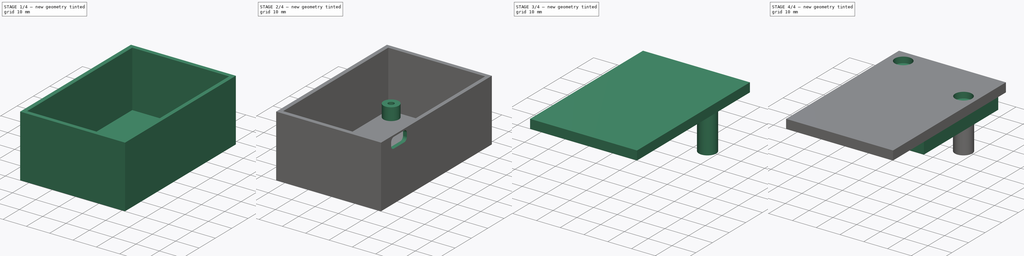
[diagram: build sequence overview — one tinted view per stage of 4, left to right]
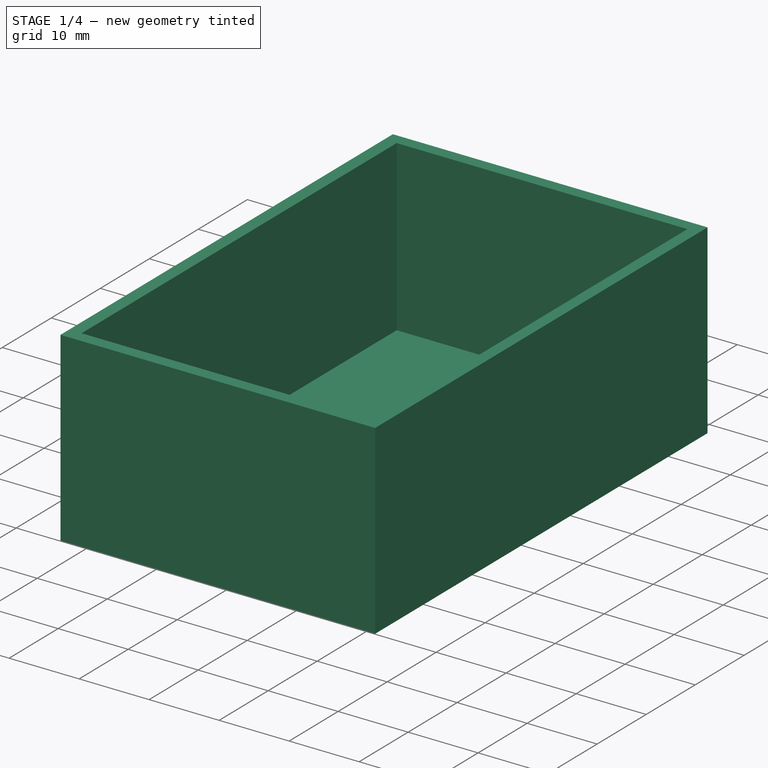
[diagram: stage 1 of 4 — iso view after this stage's code; geometry added in this stage tinted green]
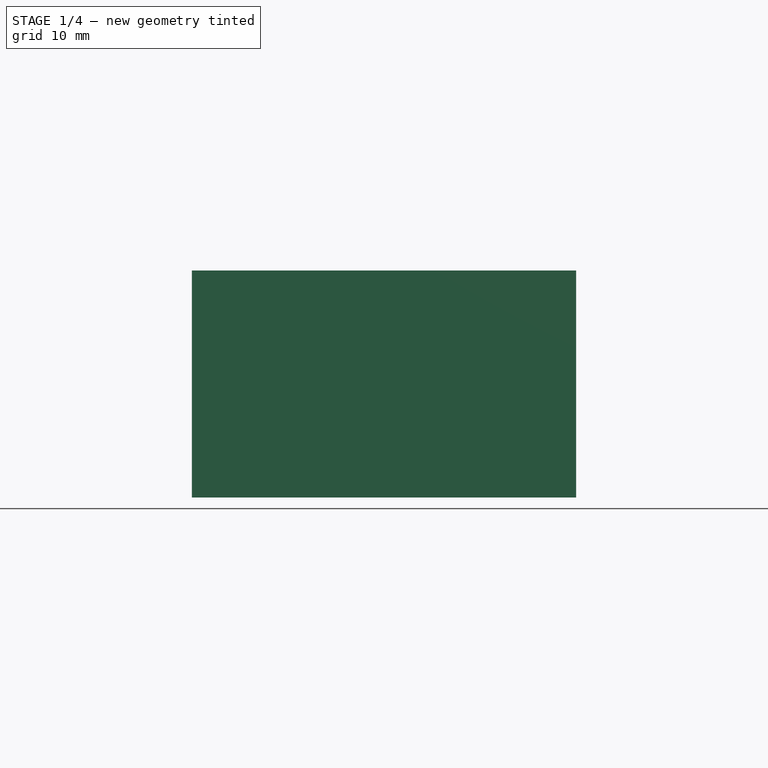
[diagram: stage 1 of 4 — front view after this stage's code; geometry added in this stage tinted green]
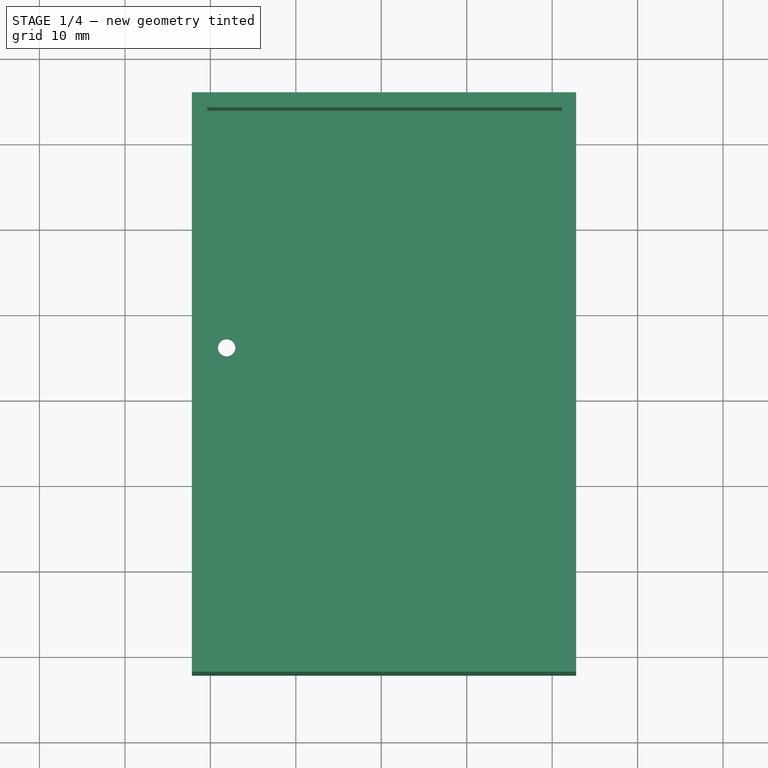
[diagram: stage 1 of 4 — top view after this stage's code; geometry added in this stage tinted green]
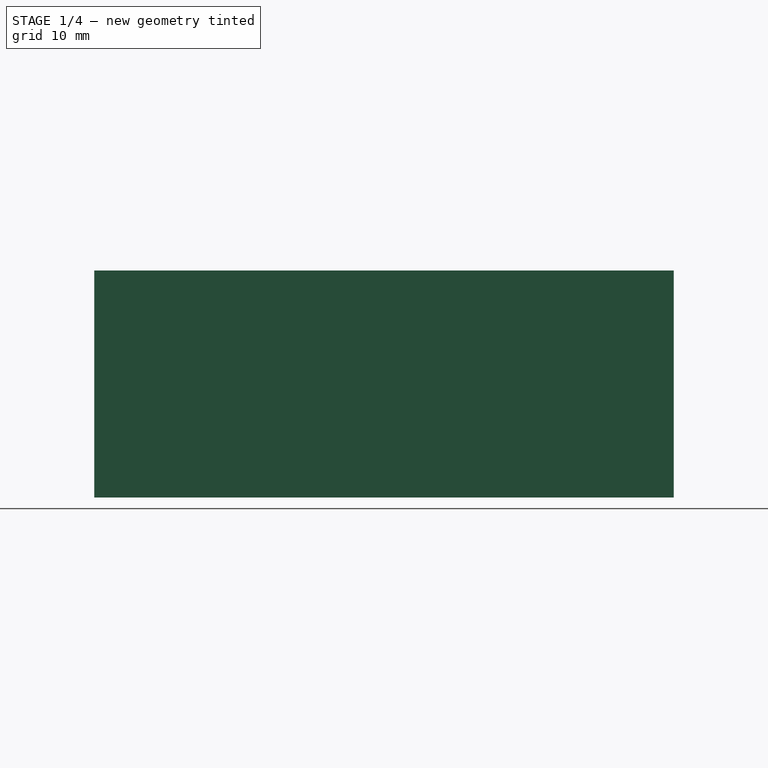
[diagram: stage 1 of 4 — right view after this stage's code; geometry added in this stage tinted green]
FCSTD DOCUMENT  (FreeCAD 1.0R39109 (Git))
Label: GatewayEnclosure
License: All rights reserved
LicenseURL: https://en.wikipedia.org/wiki/All_rights_reserved
objects: Sketcher::SketchObject×12, PartDesign::Pad×7, PartDesign::Pocket×5, PartDesign::Plane×4, PartDesign::SubShapeBinder×2, PartDesign::Body×2, App::Part×1
note: 68 computed .brp shape members not serialized (recipe doc carries the construction recipe); baked Part::Feature solids carry a one-line shape summary decoded from their .brp
EXTERNAL_REF file=../PCB/PCB.FCStd obj=Assembly

FEATURE [App::Part] Part
  Origin = -> Origin
FEATURE [PartDesign::SubShapeBinder] Binder
  BindCopyOnChange = 0
  BindMode = 0
  ClaimChildren = false
  Context = -> Body [Binder.]
  Fuse = false
  MakeFace = true
  OffsetFill = false
  OffsetIntersection = false
  OffsetJoinType = 0
  OffsetOpenResult = false
  PartialLoad = false
  Refine = true
  Relative = true
  Support = -> [<external ../PCB/PCB.FCStd>#Assembly]
  _Version = 2
FEATURE [PartDesign::Plane] DatumPlane  label="PCB bottom"
  AttachmentSupport = -> [Binder]
  Length = 83.6124
  MapMode = 5
  Placement = pos=(0,0,0) rot=(1,0,0;3.14159rad)
  ResizeMode = 0
  Width = 108.021
FEATURE [PartDesign::Plane] DatumPlane001  label="enclosure bottom inner face"
  AttachmentOffset = pos=(0,0,5.334) rot=(0,0,1;0rad)
  AttachmentSupport = -> [DatumPlane]
  Length = 83.6124
  MapMode = 2
  Placement = pos=(0,0,-5.334) rot=(1,0,0;3.14159rad)
  ResizeMode = 0
  Width = 108.021
FEATURE [Sketcher::SketchObject] Sketch
  ArcFitTolerance = 1e-06
  AttachmentSupport = -> [DatumPlane001]
  ExternalGeometry = -> [Binder]
  FullyConstrained = true
  MakeInternals = false
  MapMode = 5
  Placement = pos=(0,0,-5.334) rot=(1,0,0;3.14159rad)
  sketch-geometry (10):
    g0: LineSegment StartX=-2.159 StartY=2.159 StartZ=0 EndX=-2.159 EndY=-65.659 EndZ=0
    g1: LineSegment StartX=-2.159 StartY=-65.659 StartZ=0 EndX=42.799 EndY=-65.659 EndZ=0
    g2: LineSegment StartX=42.799 StartY=-65.659 StartZ=0 EndX=42.799 EndY=2.159 EndZ=0
    g3: LineSegment StartX=42.799 StartY=2.159 StartZ=0 EndX=-2.159 EndY=2.159 EndZ=0
    g4: GeomPoint X=20.32 Y=2.159 Z=0
    g5: GeomPoint X=20.32 Y=0 Z=0
    g6: GeomPoint X=42.799 Y=-31.75 Z=0
    g7: GeomPoint X=40.64 Y=-31.75 Z=0
    g8: LineSegment [constr] StartX=20.32 StartY=2.159 StartZ=0 EndX=20.32 EndY=0 EndZ=0
    g9: LineSegment [constr] StartX=40.64 StartY=-31.75 StartZ=0 EndX=42.799 EndY=-31.75 EndZ=0
  constraints (20):
    c: Coincident(g0,g1)
    c: Coincident(g1,g2)
    c: Coincident(g2,g3)
    c: Coincident(g3,g0)
    c: Vertical(g0)
    c: Vertical(g2)
    c: Horizontal(g1)
    c: Horizontal(g3)
    c: Symmetric(g-4,g-1,g5)
    c: Symmetric(g2,g0,g4)
    c: Symmetric(g-4,g-3,g7)
    c: Symmetric(g2,g1,g6)
    c: Horizontal(g7,g6)
    c: Vertical(g5,g4)
    c: Coincident(g8,g4)
    c: Coincident(g8,g5)
    c: Coincident(g9,g7)
    c: Coincident(g9,g6)
    c: Equal(g8,g9)
    c: DistanceY(g8,g8) = 2.159
FEATURE [PartDesign::Pad] Pad
  Direction = (0,0,-1)
  Length = 2.413
  Length2 = 10
  Placement = pos=(0,0,-5.334) rot=(1,0,0;3.14159rad)
  Profile = -> Sketch
  ReferenceAxis = -> Sketch [N_Axis]
  Refine = true
  Suppressed = false
  Type = 0
FEATURE [Sketcher::SketchObject] Sketch001
  ArcFitTolerance = 1e-06
  AttachmentSupport = -> [DatumPlane001]
  ExternalGeometry = -> [Pad,Binder]
  FullyConstrained = true
  MakeInternals = false
  MapMode = 5
  Placement = pos=(0,0,-5.334) rot=(1,0,0;3.14159rad)
  sketch-geometry (8):
    g0: LineSegment StartX=-2.159 StartY=-65.659 StartZ=0 EndX=42.799 EndY=-65.659 EndZ=0
    g1: LineSegment StartX=42.799 StartY=-65.659 StartZ=0 EndX=42.799 EndY=2.159 EndZ=0
    g2: LineSegment StartX=42.799 StartY=2.159 StartZ=0 EndX=-2.159 EndY=2.159 EndZ=0
    g3: LineSegment StartX=-2.159 StartY=2.159 StartZ=0 EndX=-2.159 EndY=-65.659 EndZ=0
    g4: LineSegment StartX=41.148 StartY=0.381 StartZ=0 EndX=-0.381 EndY=0.381 EndZ=0
    g5: LineSegment StartX=-0.381 StartY=0.381 StartZ=0 EndX=-0.381 EndY=-63.9064 EndZ=0
    g6: LineSegment StartX=-0.381 StartY=-63.9064 StartZ=0 EndX=41.148 EndY=-63.9064 EndZ=0
    g7: LineSegment StartX=41.148 StartY=-63.9064 StartZ=0 EndX=41.148 EndY=0.381 EndZ=0
  constraints (22):
    c: Coincident(g0,g1)
    c: Coincident(g1,g2)
    c: Coincident(g2,g3)
    c: Coincident(g3,g0)
    c: Horizontal(g0)
    c: Horizontal(g2)
    c: Vertical(g1)
    c: Vertical(g3)
    c: Coincident(g0,g-4)
    c: Coincident(g1,g-3)
    c: Coincident(g4,g5)
    c: Coincident(g5,g6)
    c: Coincident(g6,g7)
    c: Coincident(g7,g4)
    c: Horizontal(g4)
    c: Horizontal(g6)
    c: Vertical(g5)
    c: Vertical(g7)
    c: DistanceX(g-6,g4) = 0.508
    c: DistanceX(g4,g-1) = 0.381
    c: DistanceY(g-1,g4) = 0.381
    c: DistanceY(g5,g-5) = 0.4064
FEATURE [PartDesign::Plane] DatumPlane002  label="teensy button top"
  AttachmentSupport = -> [Binder]
  Length = 83.6124
  MapMode = 1
  Placement = pos=(11.0251,7.94038,17.051) rot=(0,0,1;0rad)
  ResizeMode = 0
  Width = 108.021
FEATURE [PartDesign::Pad] Pad001
  BaseFeature = -> Pad
  Direction = (0,0,-1)
  Length = 10
  Length2 = 10
  Offset = 1.778
  Placement = pos=(0,0,-5.334) rot=(1,0,0;3.14159rad)
  Profile = -> Sketch001
  ReferenceAxis = -> Sketch001 [N_Axis]
  Refine = true
  Suppressed = false
  Type = 3
  UpToFace = -> DatumPlane002 [Plane]
FEATURE [Sketcher::SketchObject] Sketch002
  ArcFitTolerance = 1e-06
  AttachmentSupport = -> [DatumPlane001]
  ExternalGeometry = -> [Binder]
  FullyConstrained = true
  MakeInternals = false
  MapMode = 5
  Placement = pos=(0,0,-5.334) rot=(1,0,0;3.14159rad)
  sketch-geometry (1):
    g0: Circle CenterX=1.905 CenterY=-36.195 CenterZ=0 NormalX=0 NormalY=0 NormalZ=1 AngleXU=0 Radius=1.016
  constraints (2):
    c: Coincident(g0,g-3)
    c: Diameter(g0) = 2.032
FEATURE [PartDesign::Pocket] Pocket
  BaseFeature = -> Pad001
  Direction = (0,0,1)
  Length = 5
  Length2 = 5
  Placement = pos=(0,0,-5.334) rot=(1,0,0;3.14159rad)
  Profile = -> Sketch002
  ReferenceAxis = -> Sketch002 [N_Axis]
  Refine = true
  Reversed = true
  Suppressed = false
  Type = 1
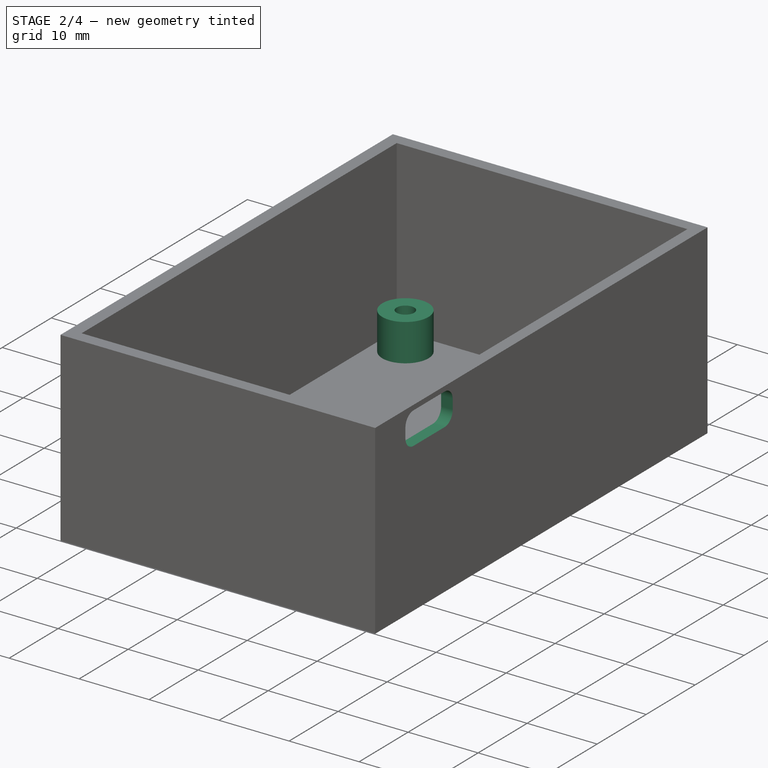
[diagram: stage 2 of 4 — iso view after this stage's code; geometry added in this stage tinted green]
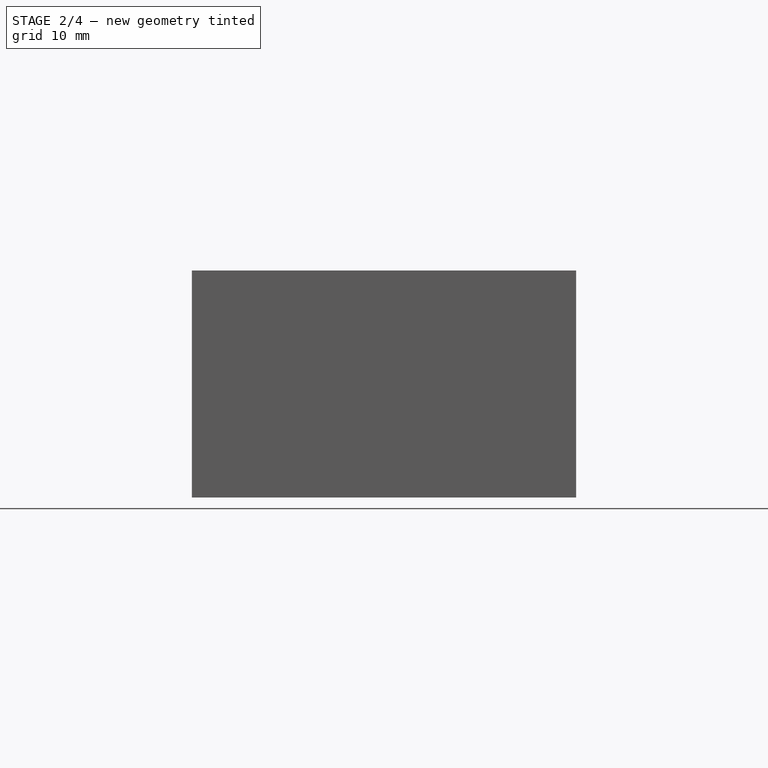
[diagram: stage 2 of 4 — front view after this stage's code; geometry added in this stage tinted green]
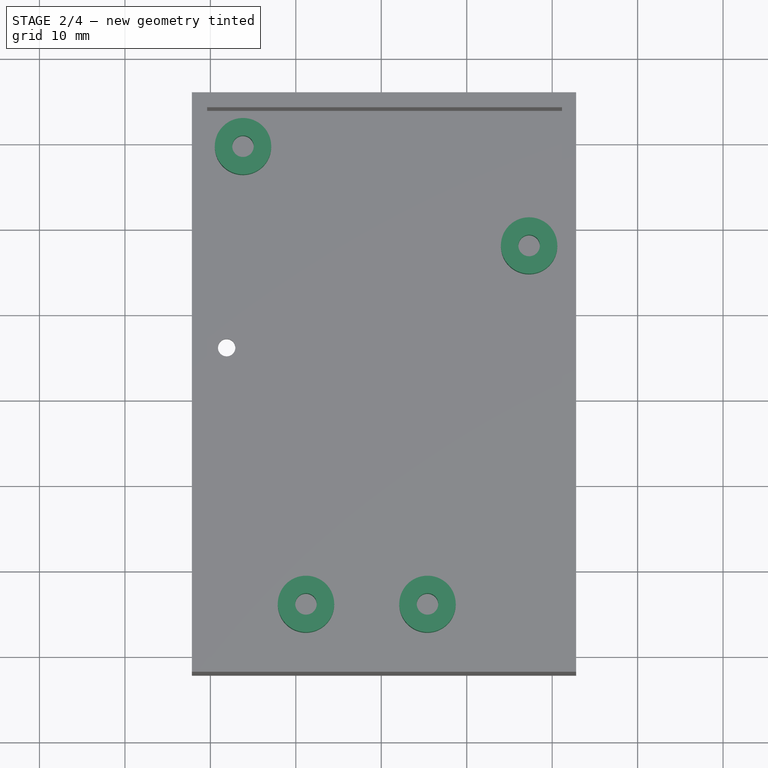
[diagram: stage 2 of 4 — top view after this stage's code; geometry added in this stage tinted green]
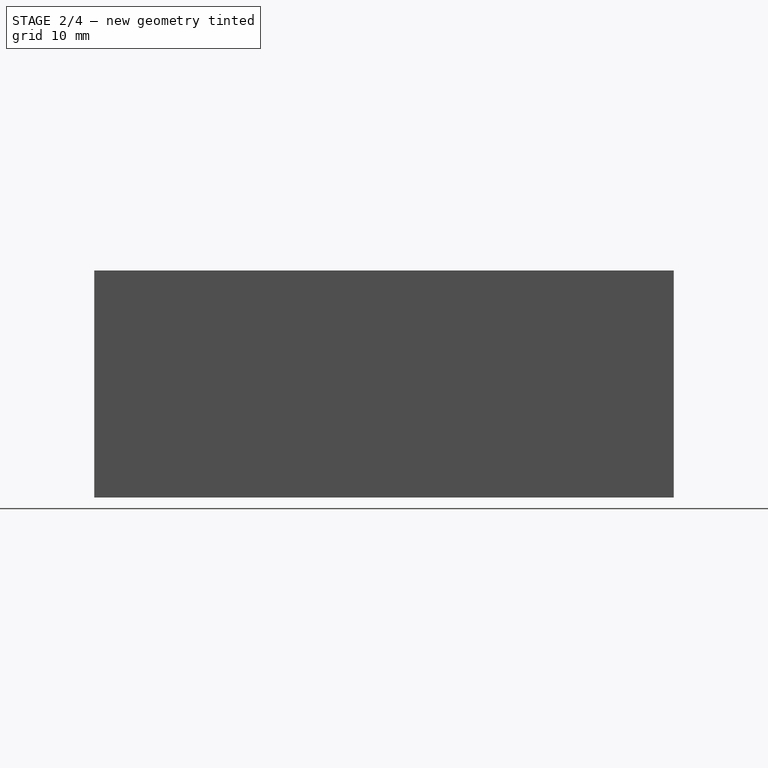
[diagram: stage 2 of 4 — right view after this stage's code; geometry added in this stage tinted green]
FEATURE [Sketcher::SketchObject] Sketch003
  ArcFitTolerance = 1e-06
  AttachmentSupport = -> [DatumPlane001]
  ExternalGeometry = -> [Binder]
  FullyConstrained = true
  MakeInternals = false
  MapMode = 5
  Placement = pos=(0,0,-5.334) rot=(1,0,0;3.14159rad)
  sketch-geometry (8):
    g0: Circle CenterX=3.81962 CenterY=-59.6804 CenterZ=0 NormalX=0 NormalY=0 NormalZ=1 AngleXU=0 Radius=3.302
    g1: Circle CenterX=37.3014 CenterY=-48.058 CenterZ=0 NormalX=0 NormalY=0 NormalZ=1 AngleXU=0 Radius=3.302
    g2: Circle CenterX=25.4096 CenterY=-6.10947 CenterZ=0 NormalX=0 NormalY=0 NormalZ=1 AngleXU=0 Radius=3.302
    g3: Circle CenterX=11.1895 CenterY=-6.10947 CenterZ=0 NormalX=0 NormalY=0 NormalZ=1 AngleXU=0 Radius=3.302
    g4: Circle CenterX=3.81962 CenterY=-59.6804 CenterZ=0 NormalX=0 NormalY=0 NormalZ=1 AngleXU=0 Radius=1.2573
    g5: Circle CenterX=37.3014 CenterY=-48.058 CenterZ=0 NormalX=0 NormalY=0 NormalZ=1 AngleXU=0 Radius=1.2573
    g6: Circle CenterX=25.4096 CenterY=-6.10947 CenterZ=0 NormalX=0 NormalY=0 NormalZ=1 AngleXU=0 Radius=1.2573
    g7: Circle CenterX=11.1895 CenterY=-6.10947 CenterZ=0 NormalX=0 NormalY=0 NormalZ=1 AngleXU=0 Radius=1.2573
  constraints (16):
    c: Coincident(g0,g-3)
    c: Coincident(g1,g-4)
    c: Coincident(g2,g-5)
    c: Coincident(g3,g-6)
    c: Equal(g3,g2)
    c: Equal(g3,g1)
    c: Equal(g1,g0)
    c: Diameter(g0) = 6.604
    c: Coincident(g4,g0)
    c: Coincident(g5,g1)
    c: Coincident(g6,g2)
    c: Coincident(g7,g3)
    c: Diameter(g7) = 2.5146
    c: Equal(g7,g6)
    c: Equal(g7,g5)
    c: Equal(g4,g7)
FEATURE [PartDesign::Pad] Pad002
  BaseFeature = -> Pocket
  Direction = (0,0,-1)
  Length = 10
  Length2 = 10
  Placement = pos=(0,0,-5.334) rot=(1,0,0;3.14159rad)
  Profile = -> Sketch003
  ReferenceAxis = -> Sketch003 [N_Axis]
  Refine = true
  Suppressed = false
  Type = 3
  UpToFace = -> DatumPlane [Plane]
FEATURE [Sketcher::SketchObject] Sketch004
  ArcFitTolerance = 1e-06
  AttachmentSupport = -> [Pad002]
  ExternalGeometry = -> [Binder]
  FullyConstrained = true
  MakeInternals = false
  MapMode = 5
  Placement = pos=(42.799,0,-5.334) rot=(0.57735,-0.57735,0.57735;4.18879rad)
  sketch-geometry (5):
    g0: ArcOfCircle CenterX=-12.0404 CenterY=-20.485 CenterZ=0 NormalX=0 NormalY=0 NormalZ=1 AngleXU=0 Radius=1.622 StartAngle=5.85397 EndAngle=9.85399
    g1: ArcOfCircle CenterX=-12.0404 CenterY=-21.835 CenterZ=0 NormalX=0 NormalY=0 NormalZ=1 AngleXU=0 Radius=1.622 StartAngle=2.71238 EndAngle=6.7124
    g2: ArcOfCircle CenterX=-5.64038 CenterY=-21.835 CenterZ=0 NormalX=0 NormalY=0 NormalZ=1 AngleXU=0 Radius=1.622 StartAngle=2.71238 EndAngle=6.7124
    g3: LineSegment [constr] StartX=-5.64038 StartY=-21.835 StartZ=0 EndX=-5.64038 EndY=-23.457 EndZ=0
    g4: ArcOfCircle CenterX=-5.64038 CenterY=-20.485 CenterZ=0 NormalX=0 NormalY=0 NormalZ=1 AngleXU=0 Radius=1.622 StartAngle=5.85397 EndAngle=9.85399
  constraints (16):
    c: Coincident(g0,g-6)
    c: Coincident(g1,g-3)
    c: Coincident(g2,g-4)
    c: Coincident(g3,g2)
    c: PointOnObject(g3,g2)
    c: Vertical(g3)
    c: DistanceY(g3,g-7) = 0.762
    c: Equal(g2,g1)
    c: Equal(g2,g0)
    c: PointOnObject(g2,g4)
    c: Coincident(g4,g2)
    c: PointOnObject(g4,g2)
    c: Coincident(g1,g0)
    c: Coincident(g1,g0)
    c: Equal(g4,g2)
    c: Coincident(g-5,g4)
FEATURE [PartDesign::Pocket] Pocket001
  BaseFeature = -> Pad002
  Direction = (-1,0,0)
  Length = 5
  Length2 = 5
  Placement = pos=(0,0,-5.334) rot=(1,0,0;3.14159rad)
  Profile = -> Sketch004
  ReferenceAxis = -> Sketch004 [N_Axis]
  Refine = true
  Suppressed = false
  Type = 2
FEATURE [Sketcher::SketchObject] Sketch005
  ArcFitTolerance = 1e-06
  AttachmentSupport = -> [Pocket001]
  ExternalGeometry = -> [Pocket001]
  FullyConstrained = false
  MakeInternals = false
  MapMode = 5
  Placement = pos=(42.799,0,-5.334) rot=(0.57735,-0.57735,0.57735;4.18879rad)
  sketch-geometry (12):
    g0: LineSegment StartX=-12.0404 StartY=-23.457 StartZ=0 EndX=-5.64038 EndY=-23.457 EndZ=0
    g1: LineSegment StartX=-5.64038 StartY=-23.457 StartZ=0 EndX=-5.64038 EndY=-21.835 EndZ=0
    g2: LineSegment StartX=-5.64038 StartY=-18.863 StartZ=0 EndX=-12.0404 EndY=-18.863 EndZ=0
    g3: LineSegment StartX=-13.6624 StartY=-20.485 StartZ=0 EndX=-13.6624 EndY=-21.835 EndZ=0
    g4: LineSegment StartX=-13.6624 StartY=-21.835 StartZ=0 EndX=-12.0404 EndY=-21.835 EndZ=0
    g5: LineSegment StartX=-4.01838 StartY=-21.835 StartZ=0 EndX=-4.01838 EndY=-20.485 EndZ=0
    g6: LineSegment StartX=-4.01838 StartY=-20.485 StartZ=0 EndX=-5.64038 EndY=-20.485 EndZ=0
    g7: LineSegment StartX=-12.0404 StartY=-20.485 StartZ=0 EndX=-13.6624 EndY=-20.485 EndZ=0
    g8: LineSegment StartX=-5.64038 StartY=-21.835 StartZ=0 EndX=-4.01838 EndY=-21.835 EndZ=0
    g9: LineSegment StartX=-12.0404 StartY=-21.835 StartZ=0 EndX=-12.0404 EndY=-23.457 EndZ=0
    g10: LineSegment StartX=-5.64038 StartY=-20.485 StartZ=0 EndX=-5.64038 EndY=-18.863 EndZ=0
    g11: LineSegment StartX=-12.0404 StartY=-20.485 StartZ=0 EndX=-12.0404 EndY=-18.863 EndZ=0
  constraints (31):
    c: Coincident(g9,g0)
    c: Coincident(g0,g1)
    c: Coincident(g10,g2)
    c: Vertical(g1)
    c: PointOnObject(g2,g-3)
    c: Tangent(g2,g-6)
    c: Tangent(g0,g-5) = -1.5708
    c: Coincident(g3,g4)
    c: Coincident(g8,g5)
    c: Coincident(g5,g6)
    c: Coincident(g7,g3)
    c: Vertical(g3)
    c: Vertical(g5)
    c: Horizontal(g4)
    c: Horizontal(g6)
    c: Tangent(g-3,g3)
    c: Tangent(g5,g-6)
    c: PointOnObject(g6,g10)
    c: Coincident(g4,g9)
    c: Coincident(g1,g8)
    c: PointOnObject(g10,g6)
    c: Coincident(g4,g-4)
    c: Coincident(g11,g7)
    c: Coincident(g11,g2)
    c: Vertical(g11)
    c: Vertical(g9)
    c: Coincident(g-3,g7)
    c: Horizontal(g7)
    c: Horizontal(g8)
    c: Coincident(g1,g-5)
    c: Coincident(g6,g-6)
FEATURE [PartDesign::Pocket] Pocket002
  BaseFeature = -> Pocket001
  Direction = (-1,0,0)
  Length = 5
  Length2 = 5
  Placement = pos=(0,0,-5.334) rot=(1,0,0;3.14159rad)
  Profile = -> Sketch005
  ReferenceAxis = -> Sketch005 [N_Axis]
  Refine = true
  Suppressed = false
  Type = 2
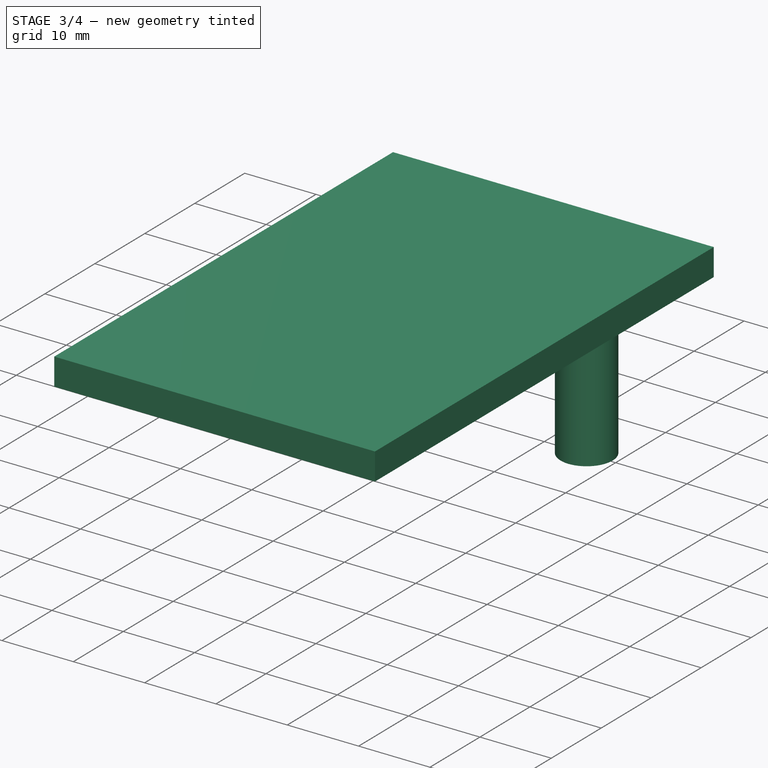
[diagram: stage 3 of 4 — iso view after this stage's code; geometry added in this stage tinted green]
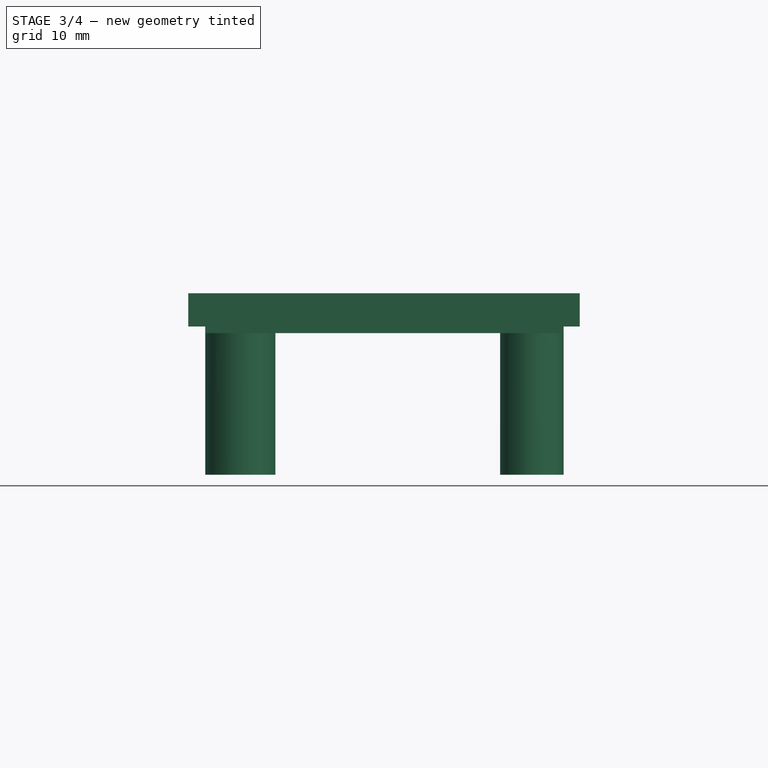
[diagram: stage 3 of 4 — front view after this stage's code; geometry added in this stage tinted green]
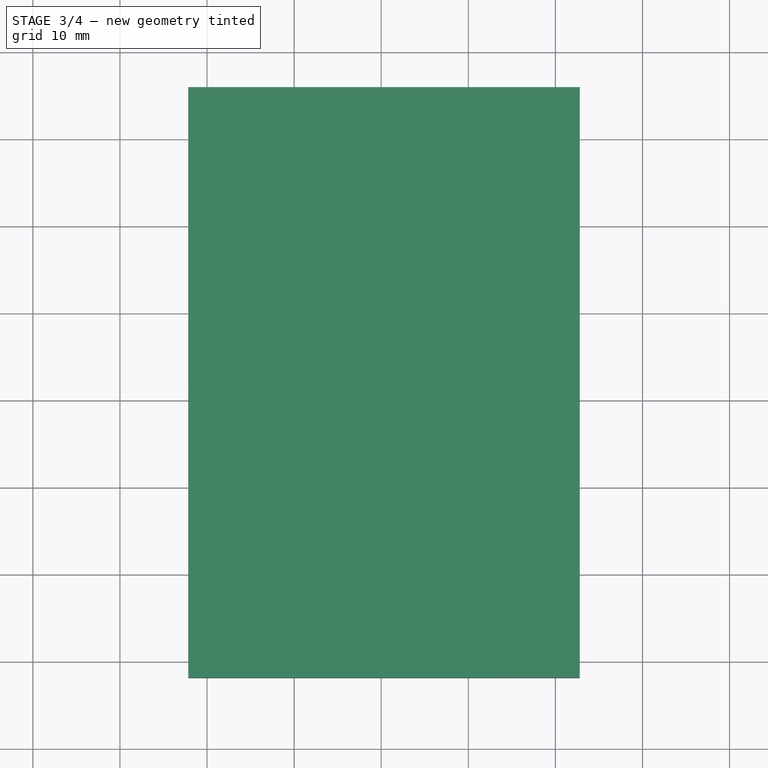
[diagram: stage 3 of 4 — top view after this stage's code; geometry added in this stage tinted green]
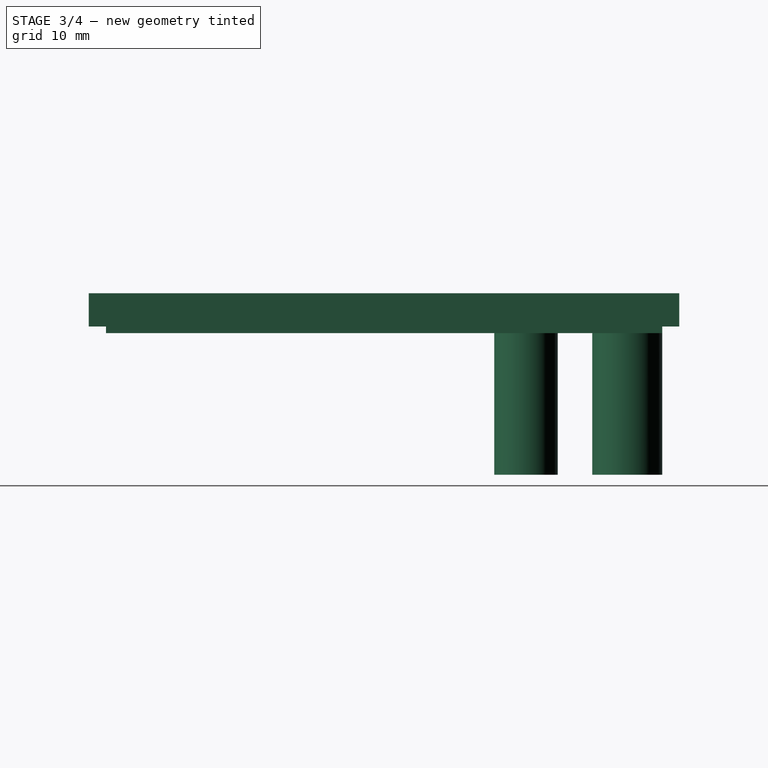
[diagram: stage 3 of 4 — right view after this stage's code; geometry added in this stage tinted green]
FEATURE [PartDesign::Body] Body  label="main body"
  AllowCompound = false
  Group = -> [Binder,DatumPlane,DatumPlane001,Sketch,Pad,Sketch001,DatumPlane002,Pad001,Sketch002,Pocket,Sketch003,Pad002,Sketch004,Pocket001,Sketch005,Pocket002]
  Origin = -> Origin001
  Tip = -> Pocket002
FEATURE [PartDesign::SubShapeBinder] Binder001
  BindCopyOnChange = 0
  BindMode = 0
  ClaimChildren = false
  Context = -> Body001 [Binder001.]
  Fuse = false
  MakeFace = true
  OffsetFill = false
  OffsetIntersection = false
  OffsetJoinType = 0
  OffsetOpenResult = false
  PartialLoad = false
  Refine = true
  Relative = true
  Support = -> [Body]
  _Version = 2
FEATURE [PartDesign::Plane] DatumPlane003  label="mating plane"
  AttachmentSupport = -> [Binder001]
  Length = 83.479
  MapMode = 5
  Placement = pos=(0,-2.3e-15,18.829) rot=(0,0,1;0rad)
  ResizeMode = 0
  Width = 106.339
FEATURE [Sketcher::SketchObject] Sketch006
  ArcFitTolerance = 1e-06
  AttachmentSupport = -> [DatumPlane003]
  ExternalGeometry = -> [Binder001]
  FullyConstrained = true
  MakeInternals = false
  MapMode = 5
  Placement = pos=(0,-2.3e-15,18.829) rot=(0,0,1;0rad)
  sketch-geometry (4):
    g0: LineSegment StartX=42.799 StartY=65.659 StartZ=0 EndX=-2.159 EndY=65.659 EndZ=0
    g1: LineSegment StartX=-2.159 StartY=65.659 StartZ=0 EndX=-2.159 EndY=-2.159 EndZ=0
    g2: LineSegment StartX=-2.159 StartY=-2.159 StartZ=0 EndX=42.799 EndY=-2.159 EndZ=0
    g3: LineSegment StartX=42.799 StartY=-2.159 StartZ=0 EndX=42.799 EndY=65.659 EndZ=0
  constraints (10):
    c: Coincident(g0,g1)
    c: Coincident(g1,g2)
    c: Coincident(g2,g3)
    c: Coincident(g3,g0)
    c: Horizontal(g0)
    c: Horizontal(g2)
    c: Vertical(g1)
    c: Vertical(g3)
    c: Coincident(g0,g-3)
    c: Coincident(g1,g-4)
FEATURE [PartDesign::Pad] Pad003
  Direction = (0,0,1)
  Length = 3.81
  Length2 = 10
  Placement = pos=(0,-2.3e-15,18.829) rot=(0,0,1;0rad)
  Profile = -> Sketch006
  ReferenceAxis = -> Sketch006 [N_Axis]
  Refine = true
  Suppressed = false
  Type = 0
FEATURE [Sketcher::SketchObject] Sketch007
  ArcFitTolerance = 1e-06
  AttachmentSupport = -> [DatumPlane003]
  ExternalGeometry = -> [Binder001]
  FullyConstrained = true
  MakeInternals = false
  MapMode = 5
  Placement = pos=(0,-2.3e-15,18.829) rot=(0,0,1;0rad)
  sketch-geometry (10):
    g0: LineSegment StartX=40.9448 StartY=-0.1778 StartZ=0 EndX=40.9448 EndY=63.7032 EndZ=0
    g1: LineSegment StartX=40.9448 StartY=63.7032 StartZ=0 EndX=-0.1778 EndY=63.7032 EndZ=0
    g2: LineSegment StartX=-0.1778 StartY=63.7032 StartZ=0 EndX=-0.1778 EndY=-0.1778 EndZ=0
    g3: LineSegment StartX=-0.1778 StartY=-0.1778 StartZ=0 EndX=40.9448 EndY=-0.1778 EndZ=0
    g4: GeomPoint X=20.3835 Y=63.7032 Z=0
    g5: GeomPoint X=20.3835 Y=63.9064 Z=0
    g6: GeomPoint X=40.9448 Y=31.7627 Z=0
    g7: GeomPoint X=41.148 Y=31.7627 Z=0
    g8: LineSegment [constr] StartX=40.9448 StartY=31.7627 StartZ=0 EndX=41.148 EndY=31.7627 EndZ=0
    g9: LineSegment [constr] StartX=20.3835 StartY=63.7032 StartZ=0 EndX=20.3835 EndY=63.9064 EndZ=0
  constraints (20):
    c: Coincident(g0,g1)
    c: Coincident(g1,g2)
    c: Coincident(g2,g3)
    c: Coincident(g3,g0)
    c: Vertical(g0)
    c: Vertical(g2)
    c: Horizontal(g1)
    c: Horizontal(g3)
    c: Symmetric(g0,g1,g4)
    c: Symmetric(g-3,g-3,g5)
    c: Vertical(g4,g5)
    c: Symmetric(g0,g0,g6)
    c: Symmetric(g-3,g-4,g7)
    c: Horizontal(g7,g6)
    c: Coincident(g8,g6)
    c: Coincident(g8,g7)
    c: Distance(g8,g8) = 0.2032
    c: Coincident(g9,g4)
    c: Coincident(g9,g5)
    c: Equal(g9,g8)
FEATURE [PartDesign::Pad] Pad004
  BaseFeature = -> Pad003
  Direction = (0,0,1)
  Length = 0.762
  Length2 = 10
  Placement = pos=(0,-2.3e-15,18.829) rot=(0,0,1;0rad)
  Profile = -> Sketch007
  ReferenceAxis = -> Sketch007 [N_Axis]
  Refine = true
  Reversed = true
  Suppressed = false
  Type = 0
FEATURE [Sketcher::SketchObject] Sketch008
  ArcFitTolerance = 1e-06
  AttachmentSupport = -> [DatumPlane003]
  ExternalGeometry = -> [Binder001,Pad004]
  FullyConstrained = true
  MakeInternals = false
  MapMode = 5
  Placement = pos=(0,-2.3e-15,18.829) rot=(0,0,1;0rad)
  sketch-geometry (4):
    g0: Circle CenterX=3.81962 CenterY=59.6804 CenterZ=0 NormalX=0 NormalY=0 NormalZ=1 AngleXU=0 Radius=4.02282
    g1: Circle CenterX=37.3014 CenterY=48.058 CenterZ=0 NormalX=0 NormalY=0 NormalZ=1 AngleXU=0 Radius=3.64336
    g2: Circle CenterX=3.81962 CenterY=59.6804 CenterZ=0 NormalX=0 NormalY=0 NormalZ=1 AngleXU=0 Radius=1.5875
    g3: Circle CenterX=37.3014 CenterY=48.058 CenterZ=0 NormalX=0 NormalY=0 NormalZ=1 AngleXU=0 Radius=1.5875
  constraints (8):
    c: Coincident(g0,g-3)
    c: Coincident(g1,g-4)
    c: Tangent(g1,g-5)
    c: Tangent(g0,g-6)
    c: Coincident(g2,g0)
    c: Coincident(g3,g1)
    c: Equal(g2,g3)
    c: Diameter(g2) = 3.175
FEATURE [PartDesign::Pad] Pad005
  BaseFeature = -> Pad004
  Direction = (0,0,1)
  Length = 17.018
  Length2 = 10
  Placement = pos=(0,-2.3e-15,18.829) rot=(0,0,1;0rad)
  Profile = -> Sketch008
  ReferenceAxis = -> Sketch008 [N_Axis]
  Refine = true
  Reversed = true
  Suppressed = false
  Type = 0
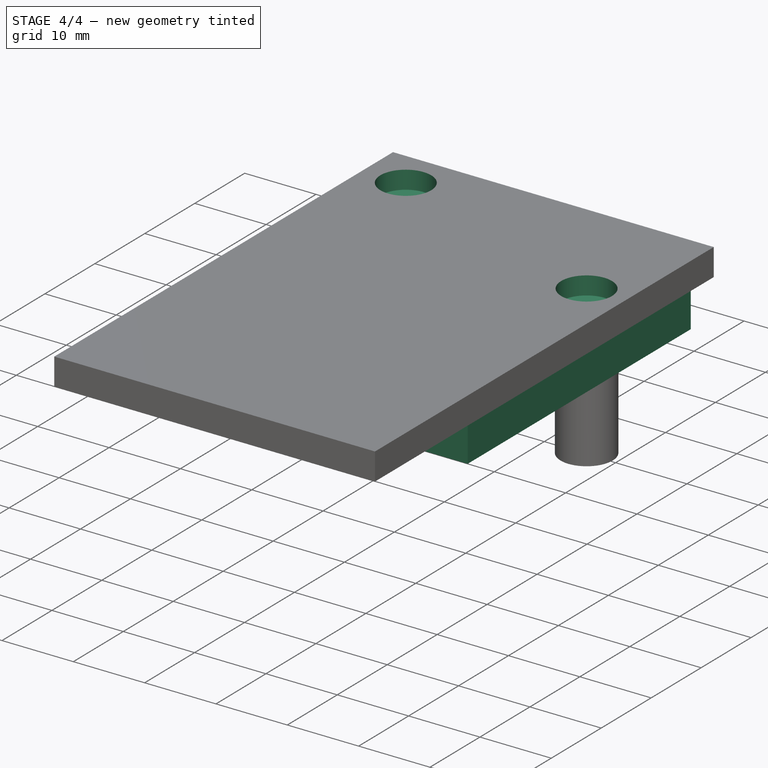
[diagram: stage 4 of 4 — iso view after this stage's code; geometry added in this stage tinted green]
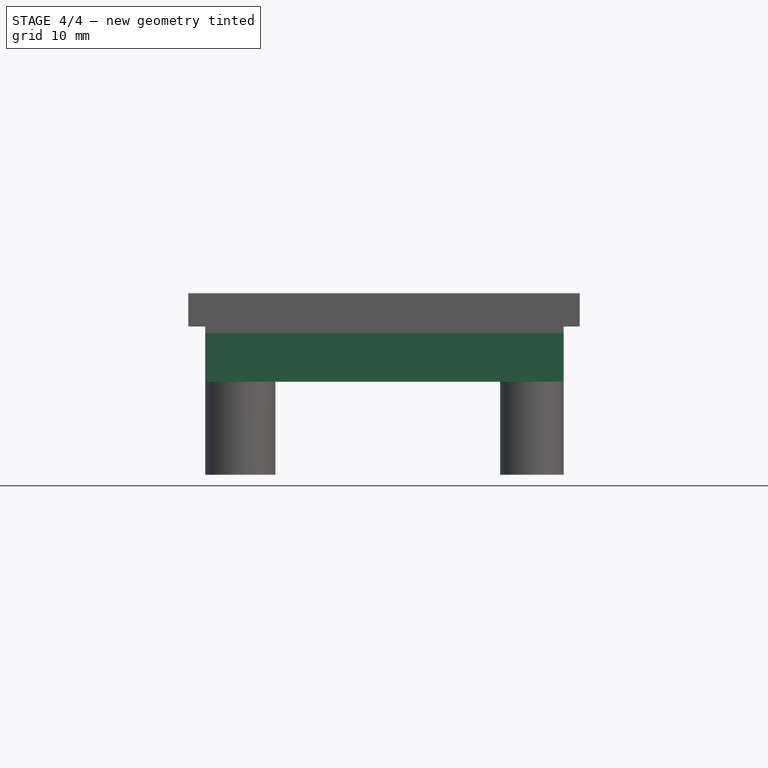
[diagram: stage 4 of 4 — front view after this stage's code; geometry added in this stage tinted green]
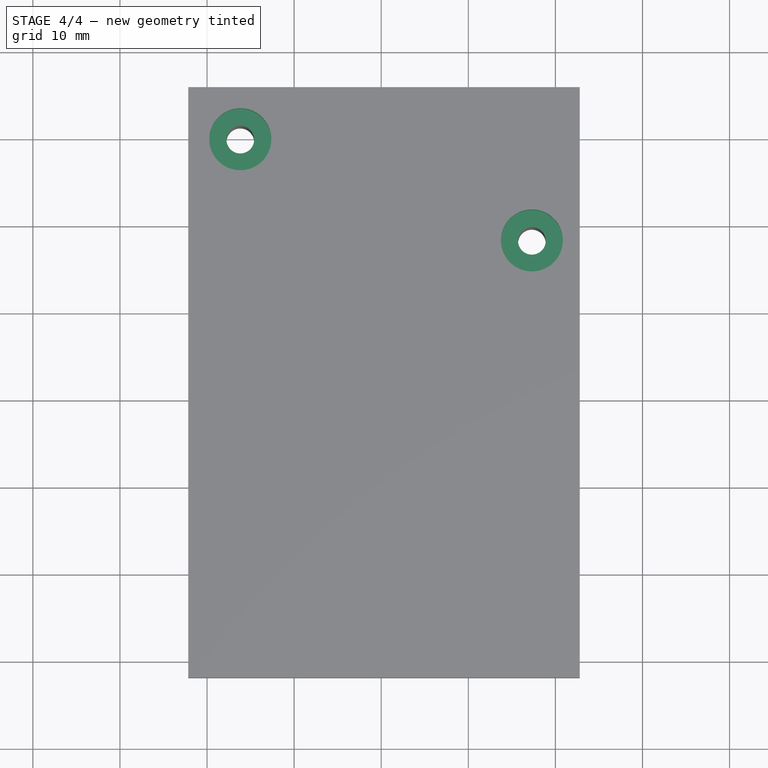
[diagram: stage 4 of 4 — top view after this stage's code; geometry added in this stage tinted green]
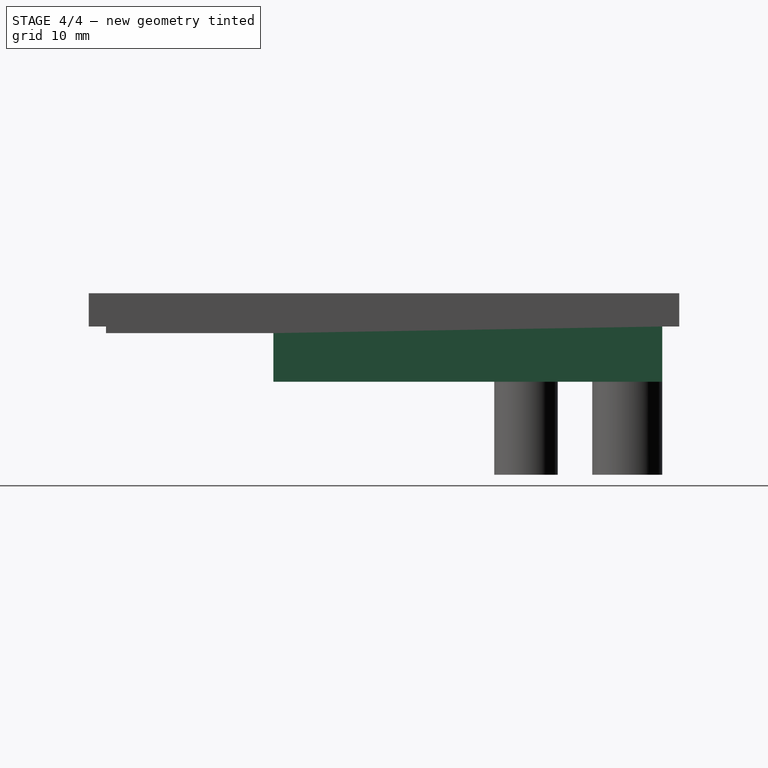
[diagram: stage 4 of 4 — right view after this stage's code; geometry added in this stage tinted green]
FEATURE [Sketcher::SketchObject] Sketch009
  ArcFitTolerance = 1e-06
  AttachmentSupport = -> [DatumPlane003]
  ExternalGeometry = -> [Pad005]
  FullyConstrained = true
  MakeInternals = false
  MapMode = 5
  Placement = pos=(0,-2.3e-15,18.829) rot=(0,0,1;0rad)
  sketch-geometry (4):
    g0: LineSegment StartX=0 StartY=63.5 StartZ=0 EndX=0 EndY=19.05 EndZ=0
    g1: LineSegment StartX=0 StartY=19.05 StartZ=0 EndX=40.9448 EndY=19.05 EndZ=0
    g2: LineSegment StartX=40.9448 StartY=19.05 StartZ=0 EndX=40.9448 EndY=63.7032 EndZ=0
    g3: LineSegment StartX=40.9448 StartY=63.7032 StartZ=0 EndX=0 EndY=63.5 EndZ=0
  constraints (10):
    c: Coincident(g0,g1)
    c: Coincident(g1,g2)
    c: Coincident(g2,g3)
    c: Coincident(g3,g0)
    c: Vertical(g0)
    c: Vertical(g2)
    c: Horizontal(g1)
    c: Coincident(g0,g-4)
    c: Coincident(g-3,g2)
    c: DistanceY(g0,g0) = 44.45
FEATURE [PartDesign::Pad] Pad006
  BaseFeature = -> Pad005
  Direction = (0,0,1)
  Length = 6.35
  Length2 = 10
  Placement = pos=(0,-2.3e-15,18.829) rot=(0,0,1;0rad)
  Profile = -> Sketch009
  ReferenceAxis = -> Sketch009 [N_Axis]
  Refine = true
  Reversed = true
  Suppressed = false
  Type = 0
FEATURE [Sketcher::SketchObject] Sketch010
  ArcFitTolerance = 1e-06
  AttachmentSupport = -> [DatumPlane003]
  ExternalGeometry = -> [Pad006]
  FullyConstrained = true
  MakeInternals = false
  MapMode = 5
  Placement = pos=(0,-2.3e-15,18.829) rot=(0,0,1;0rad)
  sketch-geometry (2):
    g0: Circle CenterX=3.81962 CenterY=59.6804 CenterZ=0 NormalX=0 NormalY=0 NormalZ=1 AngleXU=0 Radius=1.5875
    g1: Circle CenterX=37.3014 CenterY=48.058 CenterZ=0 NormalX=0 NormalY=0 NormalZ=1 AngleXU=0 Radius=1.5875
  constraints (4):
    c: Coincident(g0,g-3)
    c: Equal(g0,g-3)
    c: Coincident(g1,g-4)
    c: Equal(g1,g-4)
FEATURE [PartDesign::Pocket] Pocket003
  BaseFeature = -> Pad006
  Direction = (0,0,-1)
  Length = 5
  Length2 = 5
  Midplane = true
  Placement = pos=(0,-2.3e-15,18.829) rot=(0,0,1;0rad)
  Profile = -> Sketch010
  ReferenceAxis = -> Sketch010 [N_Axis]
  Refine = true
  Suppressed = false
  Type = 1
FEATURE [Sketcher::SketchObject] Sketch011
  ArcFitTolerance = 1e-06
  AttachmentSupport = -> [Pocket003]
  ExternalGeometry = -> [Pocket003]
  FullyConstrained = true
  MakeInternals = false
  MapMode = 5
  Placement = pos=(0,-2.3e-15,22.639) rot=(0,0,1;0rad)
  sketch-geometry (2):
    g0: Circle CenterX=3.81962 CenterY=59.6804 CenterZ=0 NormalX=0 NormalY=0 NormalZ=1 AngleXU=0 Radius=3.556
    g1: Circle CenterX=37.3014 CenterY=48.058 CenterZ=0 NormalX=0 NormalY=0 NormalZ=1 AngleXU=0 Radius=3.556
  constraints (4):
    c: Coincident(g0,g-3)
    c: Coincident(g1,g-4)
    c: Diameter(g0) = 7.112
    c: Equal(g0,g1)
FEATURE [PartDesign::Pocket] Pocket004
  BaseFeature = -> Pocket003
  Direction = (0,0,-1)
  Length = 2.54
  Length2 = 5
  Placement = pos=(0,-2.3e-15,18.829) rot=(0,0,1;0rad)
  Profile = -> Sketch011
  ReferenceAxis = -> Sketch011 [N_Axis]
  Refine = true
  Suppressed = false
  Type = 0
FEATURE [PartDesign::Body] Body001  label="lid"
  AllowCompound = false
  Group = -> [Binder001,DatumPlane003,Sketch006,Pad003,Sketch007,Pad004,Sketch008,Pad005,Sketch009,Pad006,Sketch010,Pocket003,Sketch011,Pocket004]
  Origin = -> Origin002
  Tip = -> Pocket004
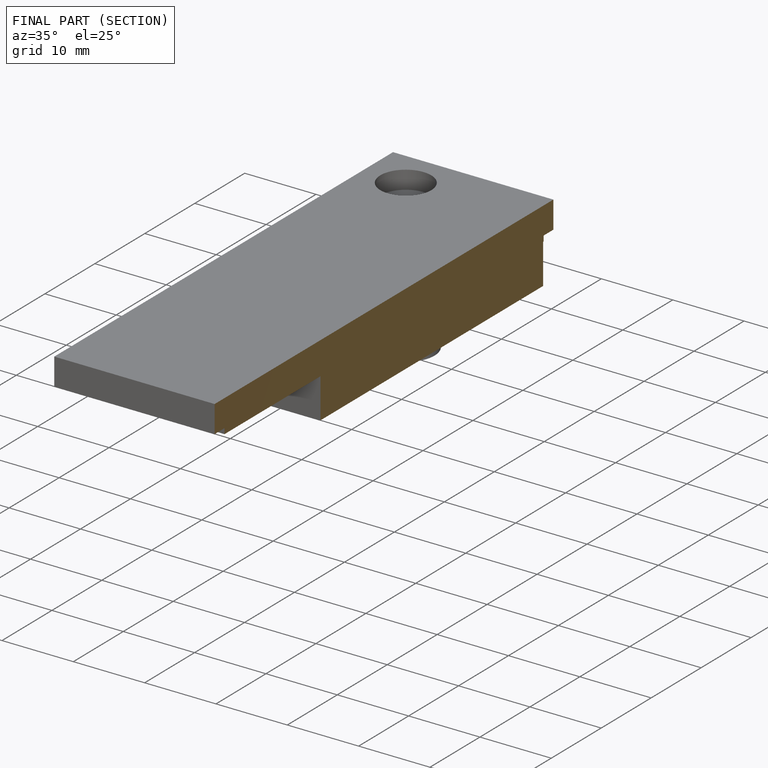
[diagram: finished part — half-section view (interior)]
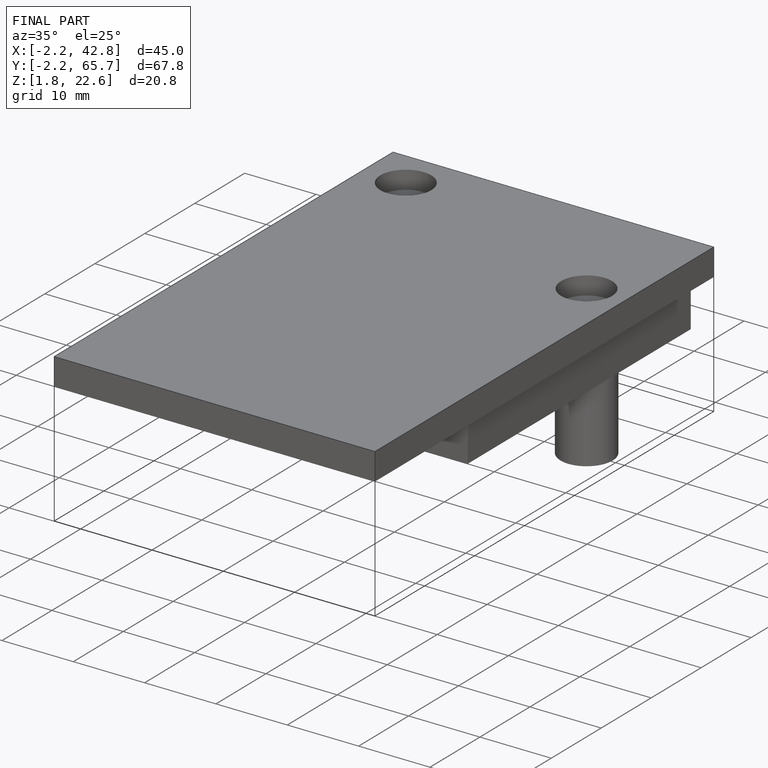
[diagram: finished part — iso view with bounding-box wireframe]
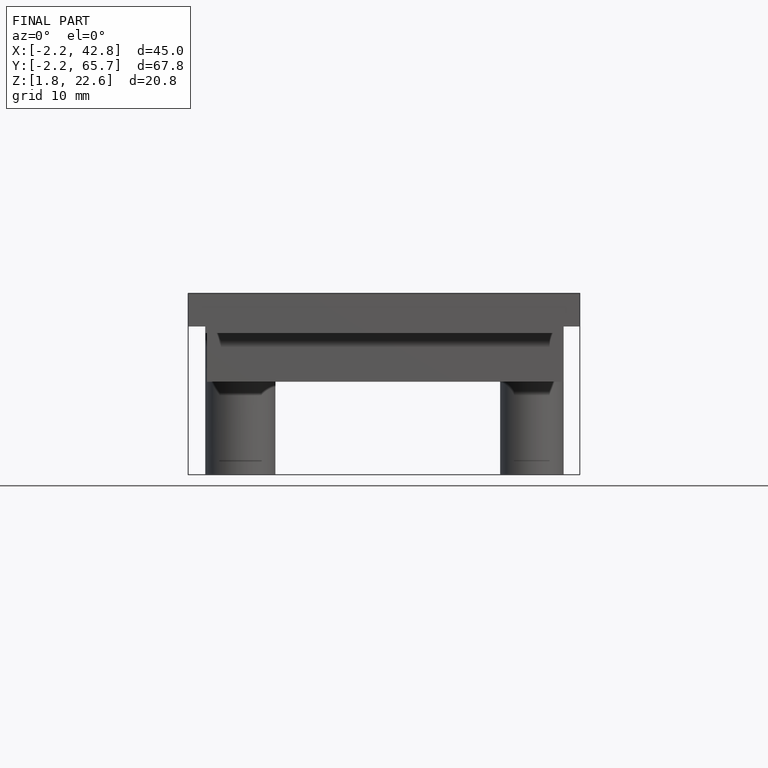
[diagram: finished part — front view with bounding-box wireframe]
